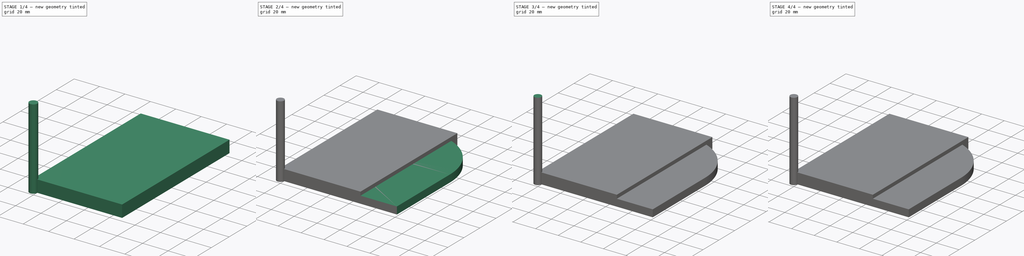
[diagram: build sequence overview — one tinted view per stage of 4, left to right]
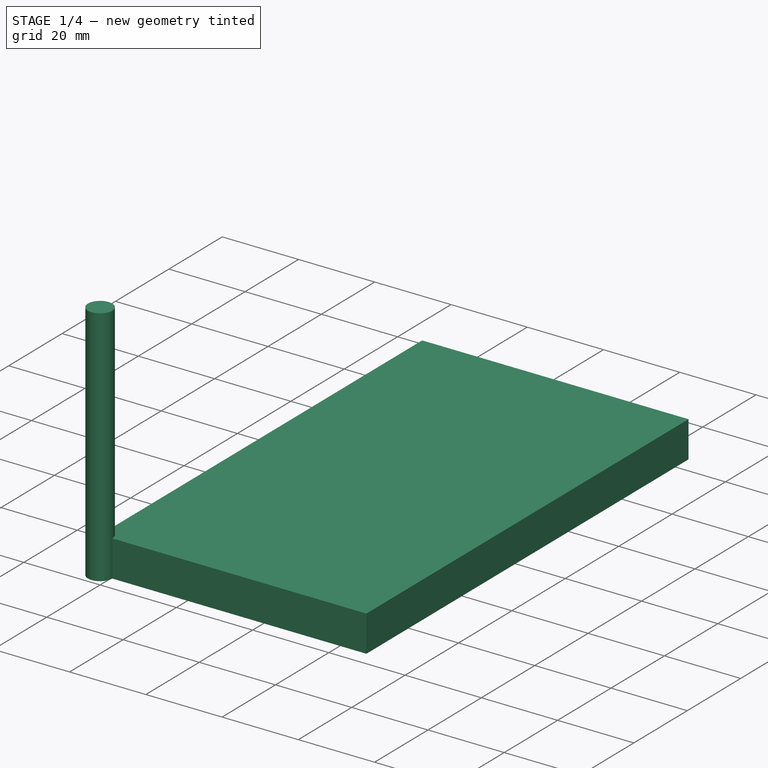
[diagram: stage 1 of 4 — iso view after this stage's code; geometry added in this stage tinted green]
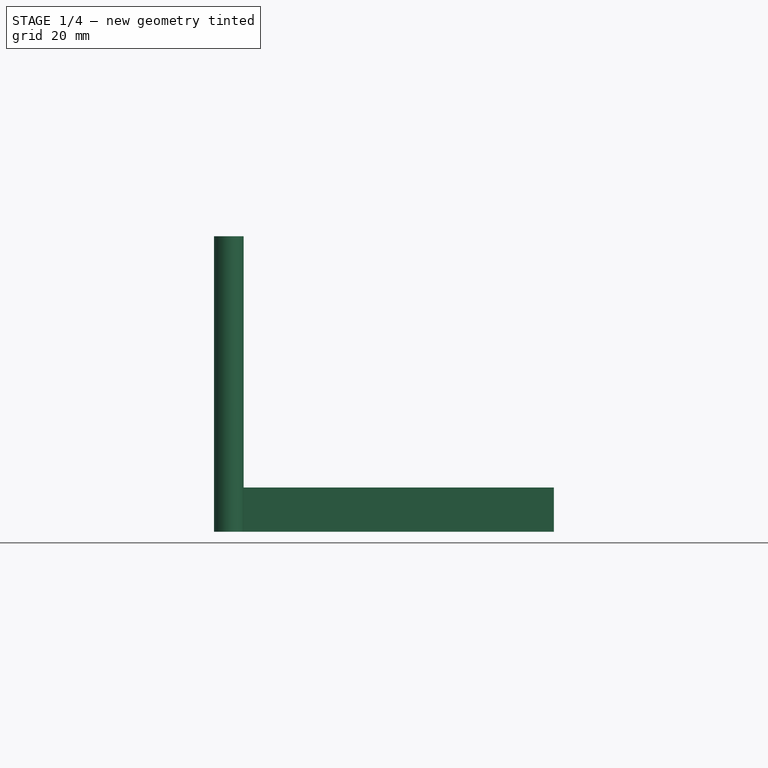
[diagram: stage 1 of 4 — front view after this stage's code; geometry added in this stage tinted green]
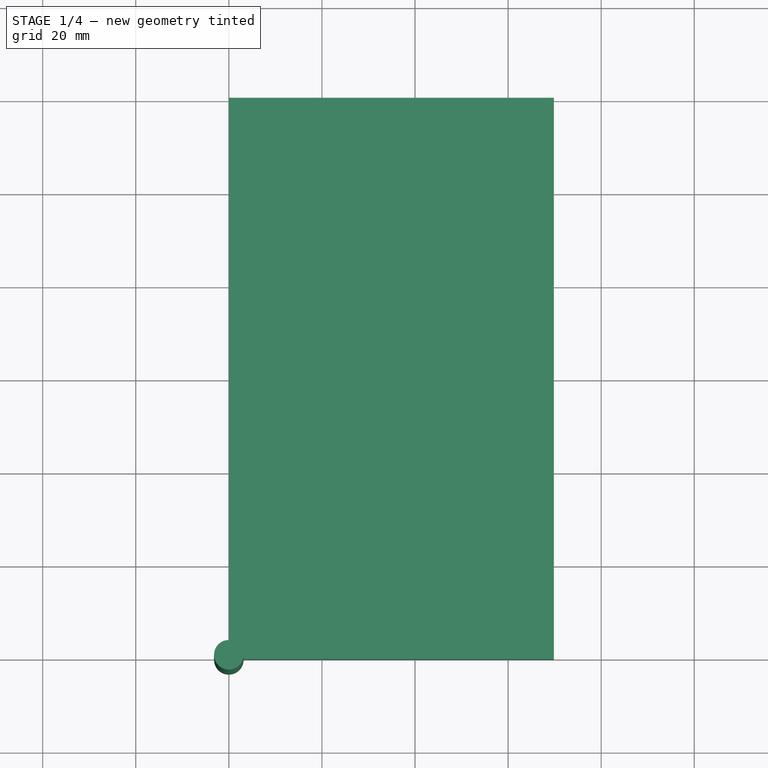
[diagram: stage 1 of 4 — top view after this stage's code; geometry added in this stage tinted green]
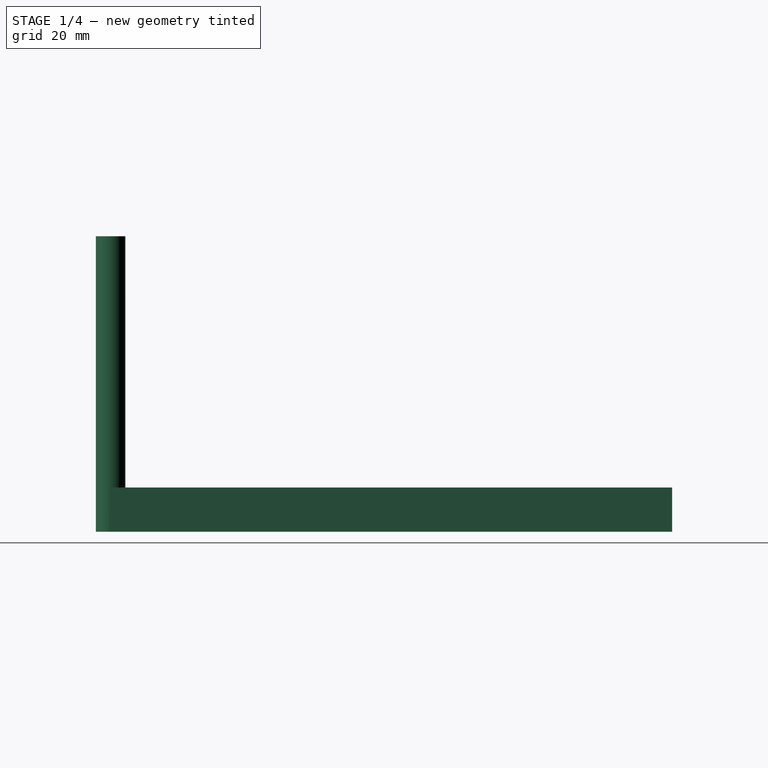
[diagram: stage 1 of 4 — right view after this stage's code; geometry added in this stage tinted green]
FCSTD DOCUMENT  (FreeCAD 1.1R42467 (Git))
Label: simple-part
License: All rights reserved
LicenseURL: http://en.wikipedia.org/wiki/All_rights_reserved
objects: Path::FeaturePython×7, Part::FeaturePython×5, Sketcher::SketchObject×4, App::FeaturePython×4, App::DocumentObjectGroup×3, PartDesign::Revolution×3, App::Point×3, PartDesign::Body×3, Part::Extrusion×1
note: 27 computed .brp shape members not serialized (recipe doc carries the construction recipe); baked Part::Feature solids carry a one-line shape summary decoded from their .brp

FEATURE [Path::FeaturePython] TC__1_4__Drill__Center  label="TC: 1/4" Drill- Center"  # Path/CAM operation (typed FeaturePython)
  HorizFeed = 0
  HorizRapid = 0
  SpindleDir = 0
  SpindleSpeed = 0
  Tool = -> __4__Drill__Center
  ToolNumber = 3
  VertFeed = 0
  VertRapid = 0
  expr: HorizRapid = SetupSheet.HorizRapid
  expr: VertRapid = SetupSheet.VertRapid
FEATURE [App::FeaturePython] PropertyBag003  label="Attributes023"  # WARN: FeaturePython — macro-defined, semantics opaque (R4)
  CustomPropertyGroups = 0
  CuttingEdgeHeight = 19.05
  Diameter = 6.35
  Flutes = 2
  Length = 63.5
  ShankDiameter = 6.35
FEATURE [Sketcher::SketchObject] Sketch004
  ArcFitTolerance = 0
  AttachmentSupport = -> [XZ_Plane003]
  ExternalTypes = [0]
  FullyConstrained = true
  MakeInternals = false
  MapMode = 5
  Placement = pos=(0,0,0) rot=(1,0,0;1.5708rad)
  expr: Constraints[10] = <<Attributes023>>.Length
  expr: Constraints[16] = <<Attributes023>>.ShankDiameter
  expr: Constraints[18] = <<Attributes023>>.CuttingEdgeHeight
  expr: Constraints[9] = <<Attributes023>>.Diameter
  sketch-geometry (8):
    g0: LineSegment StartX=0 StartY=63.5 StartZ=0 EndX=0 EndY=0 EndZ=0
    g1: LineSegment StartX=0 StartY=0 StartZ=0 EndX=3.175 EndY=0 EndZ=0
    g2: LineSegment StartX=3.175 StartY=0 StartZ=0 EndX=3.175 EndY=19.05 EndZ=0
    g3: LineSegment StartX=3.175 StartY=63.5 StartZ=0 EndX=0 EndY=63.5 EndZ=0
    g4: LineSegment [constr] StartX=3.175 StartY=0 StartZ=0 EndX=-3.175 EndY=0 EndZ=0
    g5: LineSegment StartX=3.175 StartY=19.04 StartZ=0 EndX=3.175 EndY=19.05 EndZ=0
    g6: LineSegment StartX=3.175 StartY=63.5 StartZ=0 EndX=3.175 EndY=19.04 EndZ=0
    g7: LineSegment [constr] StartX=-3.175 StartY=63.5 StartZ=0 EndX=3.175 EndY=63.5 EndZ=0
  constraints (21):
    c: Vertical(g0)
    c: Coincident(g0,g1)
    c: Horizontal(g1)
    c: Coincident(g1,g2)
    c: Vertical(g2)
    c: Horizontal(g3)
    c: Coincident(g0,g3)
    c: Coincident(g4,g1)
    c: Symmetric(g1,g4,g0)
    c: DistanceX(g4,g4) = 6.35
    c: DistanceY(g2,g3) = 63.5
    c: Coincident(g2,g5)
    c: Vertical(g6)
    c: Coincident(g3,g6)
    c: Symmetric(g7,g7,g0)
    c: Coincident(g7,g3)
    c: DistanceX(g7,g7) = 6.35
    c: Coincident(g5,g6)
    c: DistanceY(g2) = 19.05
    c: Coincident(g0,g-1)
    c: DistanceY(g5,g2) = 0.01
FEATURE [PartDesign::Revolution] Revolution003
  AllowMultiFace = false
  Angle = 360
  Angle2 = 60
  Axis = (0,2e-16,1)
  Base = (0,0,0)
  Placement = pos=(0,0,0) rot=(1,0,0;1.5708rad)
  Profile = -> Sketch004
  ReferenceAxis = -> Sketch004 [V_Axis]
  Reversed = true
  Suppressed = false
  Type = 0
FEATURE [Path::FeaturePython] TC__1_4__Endmill__2fl_Carbide  label="TC: 1/4" Endmill- 2fl Carbide"  # Path/CAM operation (typed FeaturePython)
  HorizFeed = 0
  HorizRapid = 0
  SpindleDir = 0
  SpindleSpeed = 0
  Tool = -> __4__Endmill__2fl_Carbide
  ToolNumber = 1
  VertFeed = 0
  VertRapid = 0
  expr: HorizRapid = SetupSheet.HorizRapid
  expr: VertRapid = SetupSheet.VertRapid
FEATURE [App::DocumentObjectGroup] Tools
  Group = -> [TC__1_4__Endmill__4fl_Carbide,TC__1_4__Drill__Center,TC__1_4__Endmill__2fl_Carbide]
FEATURE [Path::FeaturePython] Drilling  # Path/CAM operation (typed FeaturePython)
  Active = true
  AddTipLength = false
  Base = -> [Clone]
  ClearanceHeight = 14.525
  CoolantMode = 0
  CycleTime = Tool Feedrate Error
  DwellEnabled = false
  DwellTime = 1
  ExtraOffset = 0
  FinalDepth = 0
  KeepToolDown = false
  OpFinalDepth = 0
  OpStartDepth = 9.525
  OpStockZMax = 9.525
  OpStockZMin = 0
  OpToolDiameter = 6.35
  PeckDepth = 4.7625
  PeckEnabled = false
  RetractHeight = 12.525
  RetractMode = 0
  SafeHeight = 12.525
  StartDepth = 9.525
  ToolController = -> TC__1_4__Drill__Center
  chipBreakEnabled = false
  feedRetractEnabled = false
  expr: ClearanceHeight = OpStockZMax + SetupSheet.ClearanceHeightOffset
  expr: FinalDepth = OpFinalDepth
  expr: PeckDepth = OpToolDiameter * 0.75
  expr: RetractHeight = StartDepth + SetupSheet.SafeHeightOffset
  expr: SafeHeight = OpStockZMax + SetupSheet.SafeHeightOffset
  expr: StartDepth = OpStartDepth
FEATURE [Path::FeaturePython] Helix  # Path/CAM operation (typed FeaturePython)
  Active = true
  Base = -> [Clone]
  ClearanceHeight = 14.525
  CoolantMode = 0
  CutMode = 0
  CycleTime = Tool Feedrate Error
  Direction = 0
  Disabled = Clone.Face6
  FinalDepth = 0
  OffsetExtra = 0
  OpFinalDepth = 0
  OpStartDepth = 9.525
  OpStockZMax = 9.525
  OpStockZMin = 0
  OpToolDiameter = 6.35
  SafeHeight = 12.525
  StartDepth = 9.525
  StartRadius = 0
  StartSide = 0
  StepDown = 6.35
  StepOver = 50
  ToolController = -> TC__1_4__Endmill__2fl_Carbide
  expr: ClearanceHeight = OpStockZMax + SetupSheet.ClearanceHeightOffset
  expr: FinalDepth = OpFinalDepth
  expr: SafeHeight = OpStockZMax + SetupSheet.SafeHeightOffset
  expr: StartDepth = OpStartDepth
  expr: StepDown = OpToolDiameter
FEATURE [Path::FeaturePython] Profile  # Path/CAM operation (typed FeaturePython)
  Active = true
  AreaParams:
    Tolerance = 1e-07
    FitArcs = True
    Simplify = False
    CleanDistance = 0.0
    Accuracy = 0.01
    Unit = 1.0
    MinArcPoints = 4
    MaxArcPoints = 100
    ClipperScale = 10000000.0
    Fill = 0
    Coplanar = 0
    Reorient = True
    Outline = False
    Explode = False
    OpenMode = 0
    Deflection = 0.01
    SubjectFill = 0
    ClipFill = 0
    Offset = 0.0
    ExtraPass = 0
    Stepover = -0.0
    LastStepover = 0.0
    JoinType = 0
    EndType = 0
    MiterLimit = 2.0
    RoundPrecision = 0.0
    PocketMode = 0
    ToolRadius = 1.0
    PocketExtraOffset = 0.0
    PocketStepover = 0.0
    PocketLastStepover = 0.0
    FromCenter = False
    Angle = 45.0
    AngleShift = 0.0
    Shift = 0.0
    Thicken = False
    SectionCount = -1
    Stepdown = 1.0
    SectionOffset = 0.0
    SectionTolerance = 1e-06
    SectionMode = 2
    Project = False
  ClearanceHeight = 14.525
  CoolantMode = 0
  CycleTime = Tool Feedrate Error
  Direction = 0
  FinalDepth = 0
  HandleMultipleFeatures = 0
  JoinType = 0
  MiterLimit = 0.1
  NumPasses = 1
  OffsetExtra = 0
  OpFinalDepth = 0
  OpStartDepth = 9.525
  OpStockZMax = 9.525
  OpStockZMin = 0
  OpToolDiameter = 6.35
  PathParams = {'orientation': 0, 'feedrate': 0.0, 'feedrate_v': 0.0, 'verbose': True, 'resume_height': 12.524999999999999, 'retraction': 14.524999999999999, 'return_end': True, 'preamble': False, 'start': Vector (0.0, 0.0, 0.0)}
  SafeHeight = 12.525
  Side = 0
  SplitArcs = false
  StartDepth = 9.525
  StartPoint = (0,0,0)
  StepDown = 6.35
  Stepover = 0
  ToolController = -> TC__1_4__Endmill__2fl_Carbide
  UseComp = false
  UseStartPoint = true
  processCircles = false
  processHoles = false
  processPerimeter = true
  expr: ClearanceHeight = OpStockZMax + SetupSheet.ClearanceHeightOffset
  expr: FinalDepth = OpFinalDepth
  expr: SafeHeight = OpStockZMax + SetupSheet.SafeHeightOffset
  expr: StartDepth = OpStartDepth
  expr: StepDown = OpToolDiameter
FEATURE [App::DocumentObjectGroup] Operations
  Group = -> [Drilling,Helix,Profile]
FEATURE [Part::FeaturePython] Stock001  # WARN: FeaturePython — macro-defined, semantics opaque (R4)
  Height = 9.525
  Length = 69.85
  StockType = CreateBox
  Width = 120.65
FEATURE [Path::FeaturePython] Job  # Path/CAM operation (typed FeaturePython)
  CycleTime = 00:00:00
  Fixtures = G54
  GeometryTolerance = 0.00635
  JobType = 0
  Model = -> Model
  Operations = -> Operations
  OrderOutputBy = 0
  PostProcessor = 15
  PostProcessorArgs = --inches --line-numbers
  PostProcessorOutputFile = <userpath>/Projects/CAM/Test Files/Basic Part-LinuxCNC.cn
  SetupSheet = -> SetupSheet
  SplitOutput = false
  Stock = -> Stock001
  Tools = -> Tools
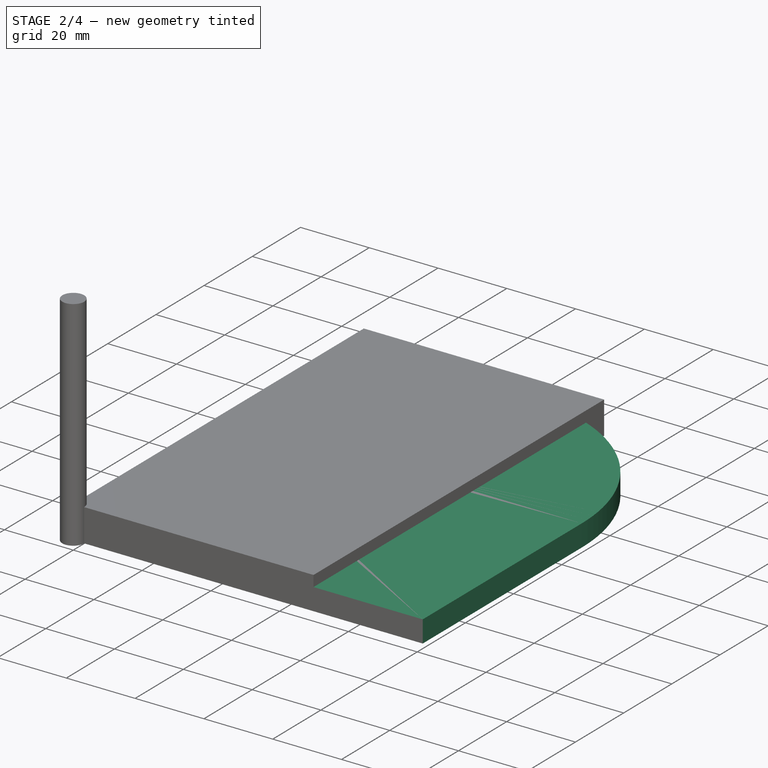
[diagram: stage 2 of 4 — iso view after this stage's code; geometry added in this stage tinted green]
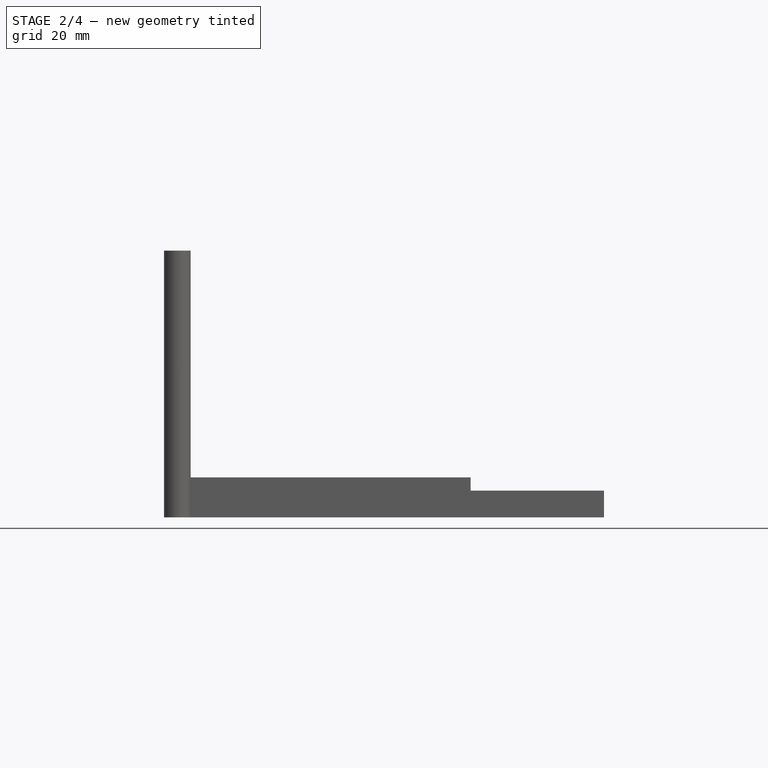
[diagram: stage 2 of 4 — front view after this stage's code; geometry added in this stage tinted green]
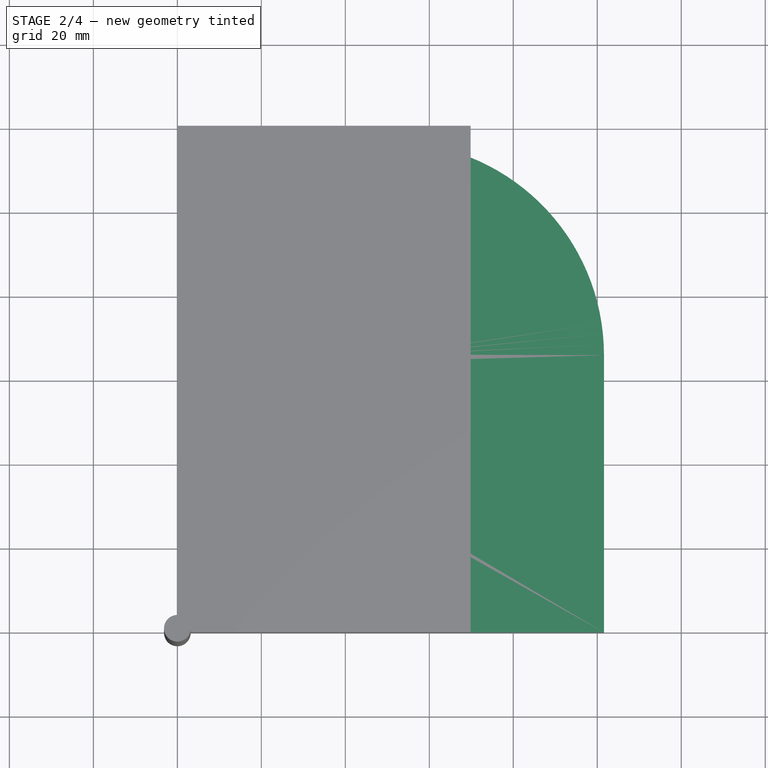
[diagram: stage 2 of 4 — top view after this stage's code; geometry added in this stage tinted green]
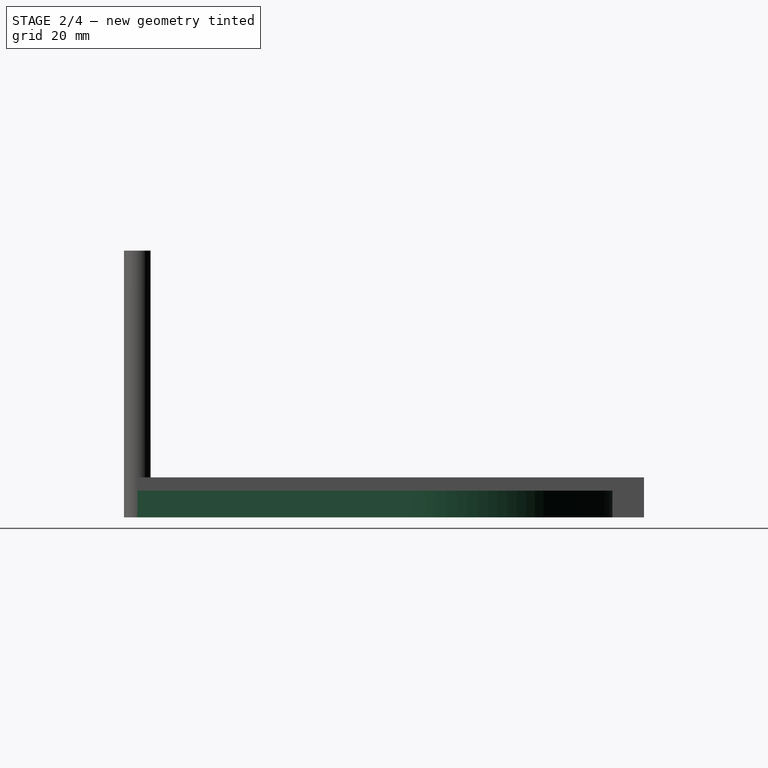
[diagram: stage 2 of 4 — right view after this stage's code; geometry added in this stage tinted green]
FEATURE [Sketcher::SketchObject] Sketch
  ArcFitTolerance = 1e-06
  ExternalTypes = [0]
  FullyConstrained = true
  MakeInternals = false
  sketch-geometry (15):
    g0: LineSegment StartX=0 StartY=0 StartZ=0 EndX=0 EndY=66.04 EndZ=0
    g1: LineSegment StartX=0 StartY=0 StartZ=0 EndX=101.6 EndY=0 EndZ=0
    g2: LineSegment StartX=101.6 StartY=0 StartZ=0 EndX=101.6 EndY=66.0401 EndZ=0
    g3: LineSegment [constr] StartX=0 StartY=66.04 StartZ=0 EndX=50.8 EndY=66.04 EndZ=0
    g4: ArcOfCircle CenterX=50.8 CenterY=66.04 CenterZ=0 NormalX=0 NormalY=0 NormalZ=1 AngleXU=0 Radius=50.8 StartAngle=1.21613e-06 EndAngle=3.14159
    g5: Circle CenterX=50.8 CenterY=66.04 CenterZ=0 NormalX=0 NormalY=0 NormalZ=1 AngleXU=0 Radius=3.175
    g6: GeomPoint X=0 Y=33.02 Z=0
    g7: GeomPoint [constr] X=0 Y=33.02 Z=0
    g8: GeomPoint [constr] X=50.8 Y=33.02 Z=0
    g9: Circle CenterX=50.8 CenterY=33.02 CenterZ=0 NormalX=0 NormalY=0 NormalZ=1 AngleXU=0 Radius=6.35
    g10: GeomPoint X=50.8 Y=116.84 Z=0
    g11: GeomPoint X=50.8 Y=0 Z=0
    g12: GeomPoint [constr] X=50.8 Y=0 Z=0
    g13: LineSegment [constr] StartX=50.8 StartY=0 StartZ=0 EndX=50.8 EndY=116.84 EndZ=0
    g14: LineSegment [constr] StartX=0 StartY=33.02 StartZ=0 EndX=50.8 EndY=33.02 EndZ=0
  constraints (30):
    c: Coincident(g0,g-1)
    c: Vertical(g0)
    c: Distance(g1) = 101.6
    c: Coincident(g1,g0)
    c: PointOnObject(g1,g-1)
    c: Coincident(g2,g1)
    c: Vertical(g2)
    c: Coincident(g3,g0)
    c: Coincident(g4,g3)
    c: Coincident(g4,g2)
    c: Coincident(g0,g4)
    c: Horizontal(g3)
    c: Diameter(g5) = 6.35
    c: Coincident(g5,g3)
    c: Symmetric(g0,g0,g6)
    c: Coincident(g7,g6)
    c: Diameter(g9) = 12.7
    c: Coincident(g9,g8)
    c: PointOnObject(g10,g4)
    c: Symmetric(g1,g1,g11)
    c: Coincident(g12,g11)
    c: Coincident(g13,g11)
    c: Coincident(g13,g10)
    c: Vertical(g13)
    c: Coincident(g14,g6)
    c: Coincident(g14,g8)
    c: Horizontal(g14)
    c: DistanceY(g-1,g10) = 116.84
    c: PointOnObject(g3,g13)
    c: PointOnObject(g8,g13)
FEATURE [Part::Extrusion] Extrude  label="Part"
  Base = -> Sketch
  Dir = (0,0,1)
  DirMode = 2
  FaceMakerClass = Part::FaceMakerBullseye
  FaceMakerMode = 3
  LengthFwd = 6.35
  LengthRev = 0
  Solid = true
  Symmetric = false
FEATURE [App::Point] Origin006
  Role = Origin
FEATURE [PartDesign::Body] Body003  label="Endmill002"
  AllowCompound = false
  Group = -> [Sketch004,Revolution003,PropertyBag003]
  Origin = -> Origin007
  Tip = -> Revolution003
FEATURE [Part::FeaturePython] __4__Endmill__2fl_Carbide  label="1/4" Endmill- 2fl Carbide"  # WARN: FeaturePython — macro-defined, semantics opaque (R4)
  BitBody = -> Body003
  Chipload = 0
  CuttingEdgeHeight = 19.05
  Diameter = 6.35
  Flutes = 2
  Length = 63.5
  Material = 1
  ShankDiameter = 6.35
  ShapeID = endmill
  ShapeType = 6
  SpindleDirection = 0
  ToolBitID = d47718d2-7371-4f2e-8ebc-a0c517a66bfe
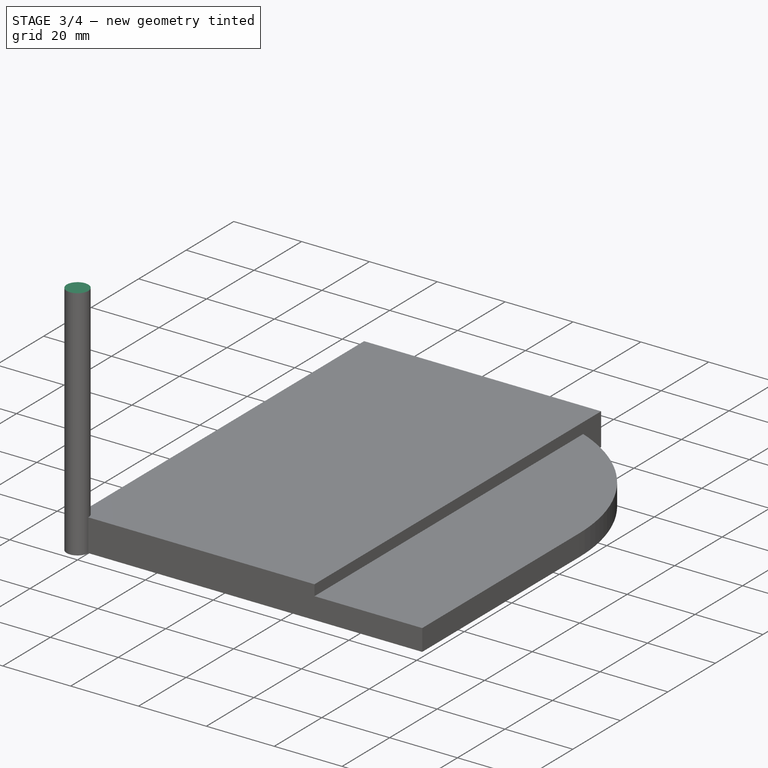
[diagram: stage 3 of 4 — iso view after this stage's code; geometry added in this stage tinted green]
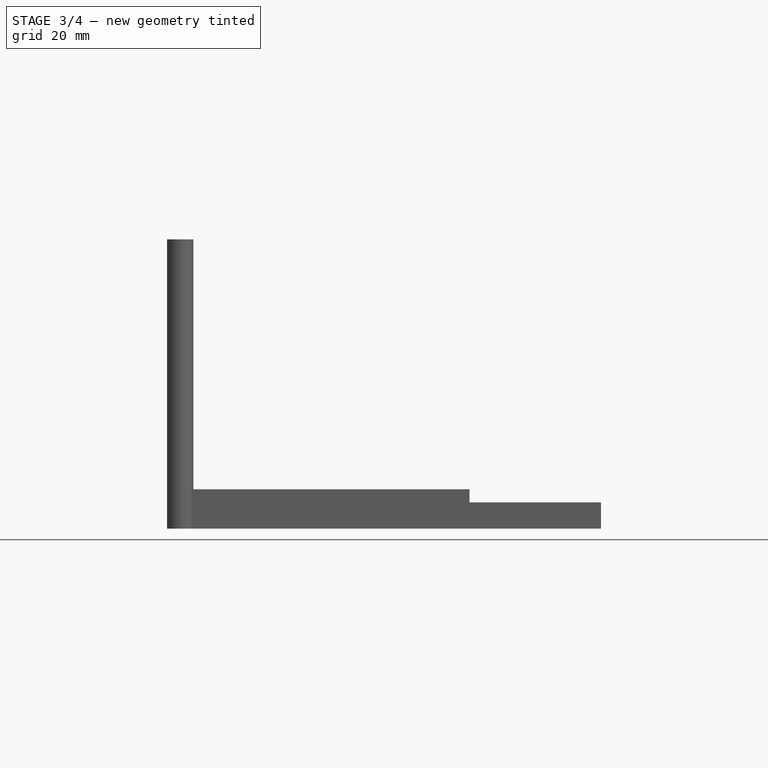
[diagram: stage 3 of 4 — front view after this stage's code; geometry added in this stage tinted green]
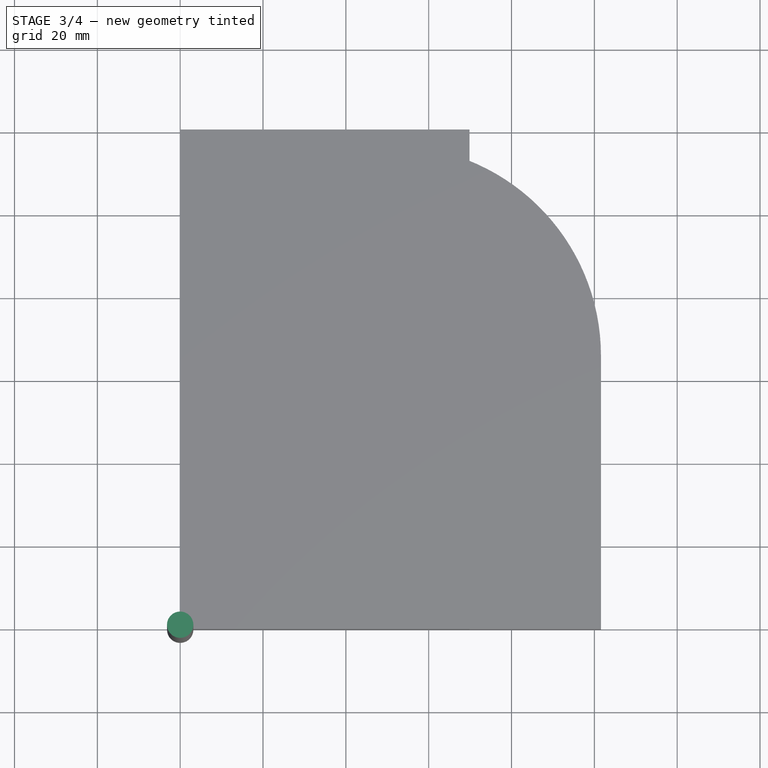
[diagram: stage 3 of 4 — top view after this stage's code; geometry added in this stage tinted green]
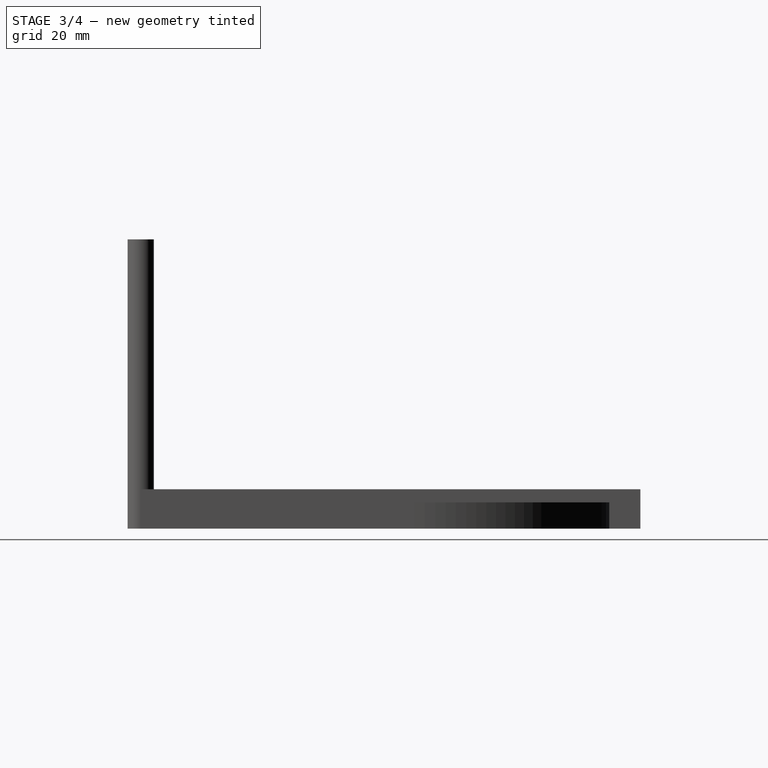
[diagram: stage 3 of 4 — right view after this stage's code; geometry added in this stage tinted green]
FEATURE [App::FeaturePython] SetupSheet  # Path/CAM operation (typed FeaturePython)
  ClearanceHeightExpression = OpStockZMax+SetupSheet.ClearanceHeightOffset
  ClearanceHeightOffset = 5
  CoolantMode = 0
  CoolantModes = None | Flood | Mist
  FinalDepthExpression = OpFinalDepth
  HorizRapid = 0
  SafeHeightExpression = OpStockZMax+SetupSheet.SafeHeightOffset
  SafeHeightOffset = 3
  StartDepthExpression = OpStartDepth
  StepDownExpression = OpToolDiameter
  VertRapid = 0
FEATURE [Part::FeaturePython] Clone  label="Model-Part"  # Draft clone (typed FeaturePython)
  AttacherType = Attacher::AttachEngine3D
  ForceCompound = false
  Fuse = false
  Objects = -> [Extrude]
  PathResource = Model
  Scale = (1,1,1)
FEATURE [Path::FeaturePython] TC__1_4__Endmill__4fl_Carbide  label="TC: 1/4" Endmill- 4fl-Carbide"  # Path/CAM operation (typed FeaturePython)
  HorizFeed = 0
  HorizRapid = 0
  SpindleDir = 0
  SpindleSpeed = 0
  Tool = -> __4__Endmill__4fl_Carbide
  ToolNumber = 2
  VertFeed = 0
  VertRapid = 0
  expr: HorizRapid = SetupSheet.HorizRapid
  expr: VertRapid = SetupSheet.VertRapid
FEATURE [App::FeaturePython] PropertyBag002  label="Attributes017"  # WARN: FeaturePython — macro-defined, semantics opaque (R4)
  CustomPropertyGroups = 0
  Diameter = 6.35
  Flutes = 2
  Length = 69.85
  TipAngle = 90
FEATURE [Sketcher::SketchObject] Sketch003
  ArcFitTolerance = 0
  AttachmentSupport = -> [XZ_Plane002]
  ExternalTypes = [0]
  FullyConstrained = true
  MakeInternals = false
  MapMode = 5
  Placement = pos=(0,0,0) rot=(1,0,0;1.5708rad)
  expr: Constraints[13] = <<Attributes017>>.TipAngle
  expr: Constraints[14] = <<Attributes017>>.Diameter
  expr: Constraints[15] = <<Attributes017>>.Length
  sketch-geometry (7):
    g0: LineSegment StartX=0 StartY=69.85 StartZ=0 EndX=0 EndY=0 EndZ=0
    g1: LineSegment StartX=0 StartY=0 StartZ=0 EndX=3.175 EndY=3.175 EndZ=0
    g2: LineSegment StartX=3.175 StartY=3.175 StartZ=0 EndX=3.175 EndY=69.85 EndZ=0
    g3: LineSegment StartX=3.175 StartY=69.85 StartZ=0 EndX=0 EndY=69.85 EndZ=0
    g4: LineSegment [constr] StartX=3.175 StartY=3.175 StartZ=0 EndX=-3.175 EndY=3.175 EndZ=0
    g5: LineSegment [constr] StartX=-3.175 StartY=3.175 StartZ=0 EndX=0 EndY=0 EndZ=0
    g6: LineSegment [constr] StartX=0 StartY=0 StartZ=0 EndX=3.175 EndY=3.175 EndZ=0
  constraints (17):
    c: Vertical(g0)
    c: Coincident(g0,g1)
    c: Coincident(g1,g2)
    c: Vertical(g2)
    c: Coincident(g2,g3)
    c: Horizontal(g3)
    c: Coincident(g0,g3)
    c: Coincident(g4,g5)
    c: Coincident(g5,g6)
    c: Coincident(g6,g4)
    c: Coincident(g1,g4)
    c: Coincident(g5,g0)
    c: Symmetric(g4,g1,g0)
    c: Angle(g1,g5) = 1.5708
    c: DistanceX(g4,g4) = 6.35
    c: DistanceY(g0,g0) = 69.85
    c: Coincident(g0,g-1)
FEATURE [PartDesign::Revolution] Revolution002
  AllowMultiFace = false
  Angle = 360
  Angle2 = 60
  Axis = (0,2e-16,1)
  Base = (0,0,0)
  Placement = pos=(0,0,0) rot=(1,0,0;1.5708rad)
  Profile = -> Sketch003
  ReferenceAxis = -> Sketch003 [V_Axis]
  Reversed = true
  Suppressed = false
  Type = 0
FEATURE [App::Point] Origin004
  Role = Origin
FEATURE [PartDesign::Body] Body002  label="Drill"
  AllowCompound = false
  Group = -> [Sketch003,Revolution002,PropertyBag002]
  Origin = -> Origin005
  Tip = -> Revolution002
FEATURE [Part::FeaturePython] __4__Drill__Center  label="1/4" Drill- Center"  # WARN: FeaturePython — macro-defined, semantics opaque (R4)
  BitBody = -> Body002
  Chipload = 0
  Diameter = 6.35
  Flutes = 2
  Length = 69.85
  Material = 1
  ShapeID = drill
  ShapeType = 5
  SpindleDirection = 0
  TipAngle = 90
  ToolBitID = f3a3e764-0c18-4120-85be-344cbe2686b5
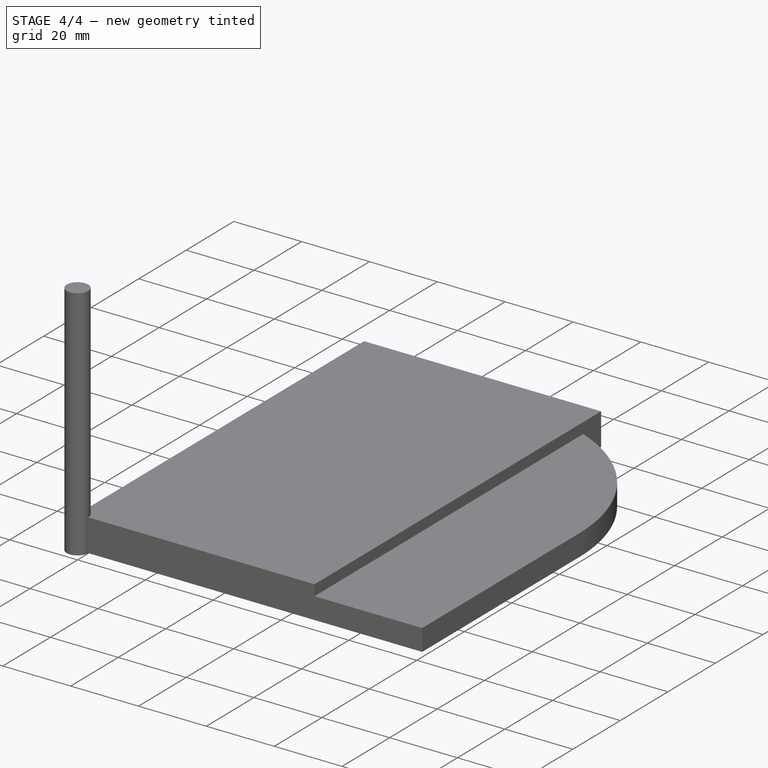
[diagram: stage 4 of 4 — iso view after this stage's code; geometry added in this stage tinted green]
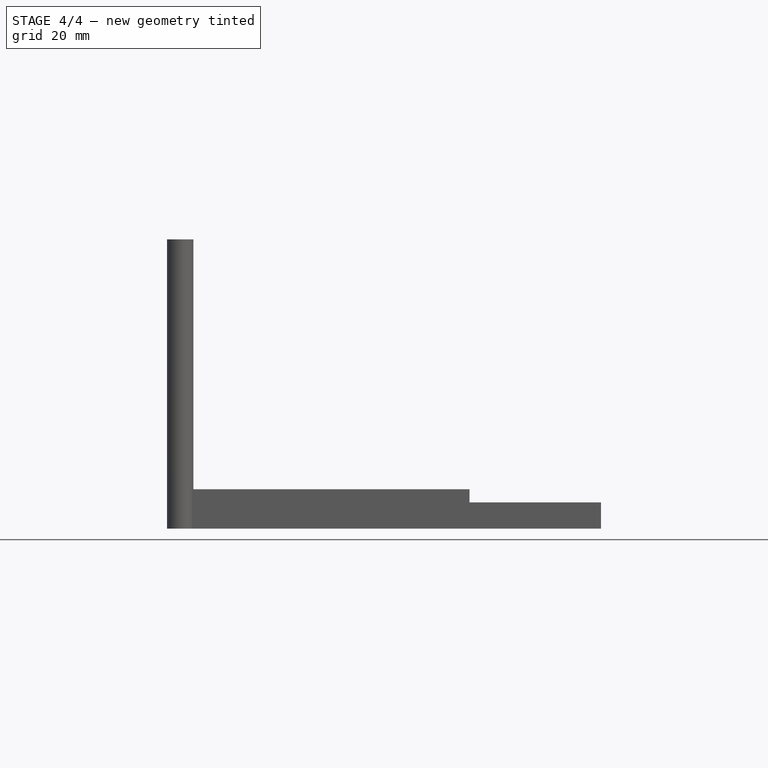
[diagram: stage 4 of 4 — front view after this stage's code; geometry added in this stage tinted green]
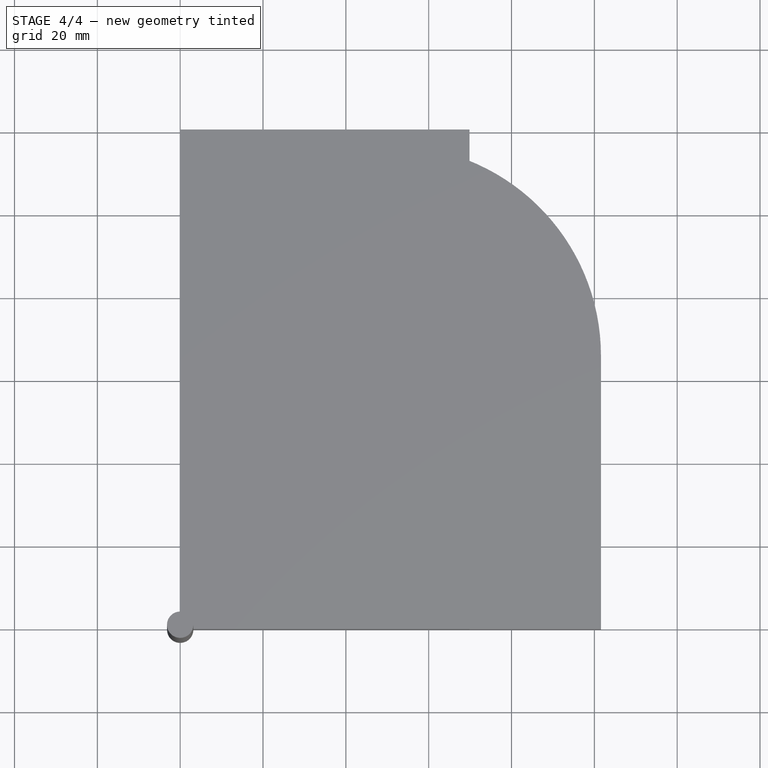
[diagram: stage 4 of 4 — top view after this stage's code; geometry added in this stage tinted green]
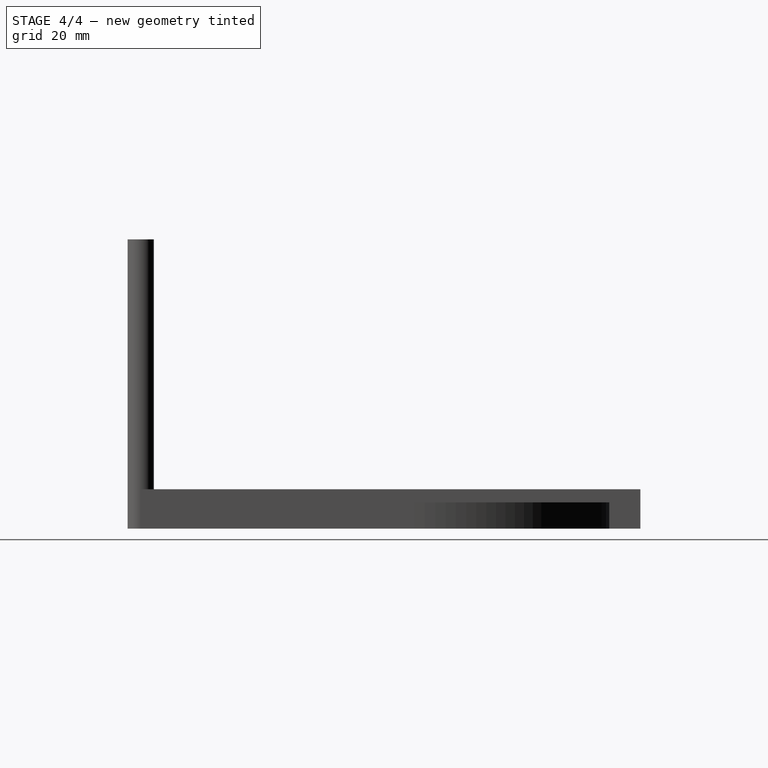
[diagram: stage 4 of 4 — right view after this stage's code; geometry added in this stage tinted green]
FEATURE [App::DocumentObjectGroup] Model
  Group = -> [Clone]
FEATURE [App::FeaturePython] PropertyBag001  label="Attributes012"  # WARN: FeaturePython — macro-defined, semantics opaque (R4)
  CustomPropertyGroups = 0
  CuttingEdgeHeight = 40.005
  Diameter = 6.35
  FlatRadius = 1.524
  Flutes = 4
  Length = 50.8
  ShankDiameter = 6.35
FEATURE [Sketcher::SketchObject] Sketch002
  ArcFitTolerance = 0
  AttachmentSupport = -> [XZ_Plane001]
  ExternalTypes = [0]
  FullyConstrained = true
  MakeInternals = false
  MapMode = 5
  Placement = pos=(0,0,0) rot=(1,0,0;1.5708rad)
  expr: Constraints[12] = <<Attributes012>>.ShankDiameter
  expr: Constraints[19] = <<Attributes012>>.FlatRadius
  expr: Constraints[20] = <<Attributes012>>.CuttingEdgeHeight
  expr: Constraints[5] = <<Attributes012>>.Diameter
  expr: Constraints[6] = <<Attributes012>>.Length
  sketch-geometry (9):
    g0: LineSegment StartX=0 StartY=50.8 StartZ=0 EndX=0 EndY=0 EndZ=0
    g1: LineSegment StartX=0 StartY=0 StartZ=0 EndX=1.524 EndY=0 EndZ=0
    g2: LineSegment StartX=3.175 StartY=1.651 StartZ=0 EndX=3.175 EndY=40.005 EndZ=0
    g3: LineSegment StartX=3.175 StartY=50.8 StartZ=0 EndX=0 EndY=50.8 EndZ=0
    g4: LineSegment [constr] StartX=3.175 StartY=0 StartZ=0 EndX=-3.175 EndY=0 EndZ=0
    g5: LineSegment StartX=3.175 StartY=40.015 StartZ=0 EndX=3.175 EndY=40.005 EndZ=0
    g6: LineSegment StartX=3.175 StartY=50.8 StartZ=0 EndX=3.175 EndY=40.015 EndZ=0
    g7: LineSegment [constr] StartX=-3.175 StartY=50.8 StartZ=0 EndX=3.175 EndY=50.8 EndZ=0
    g8: ArcOfCircle CenterX=1.524 CenterY=1.651 CenterZ=0 NormalX=0 NormalY=0 NormalZ=1 AngleXU=0 Radius=1.651 StartAngle=4.71239 EndAngle=6.28319
  constraints (24):
    c: Vertical(g0)
    c: Coincident(g0,g1)
    c: Horizontal(g1)
    c: Vertical(g2)
    c: Horizontal(g3)
    c: DistanceX(g4,g4) = 6.35
    c: DistanceY(g4,g3) = 50.8
    c: Coincident(g2,g5)
    c: Vertical(g6)
    c: Coincident(g3,g6)
    c: Symmetric(g7,g7,g0)
    c: Coincident(g7,g3)
    c: DistanceX(g7,g7) = 6.35
    c: Coincident(g5,g6)
    c: Tangent(g1,g8) = -1.5708
    c: Tangent(g2,g8) = -1.5708
    c: PointOnObject(g0,g4)
    c: Symmetric(g4,g4,g-2)
    c: Vertical(g4,g2)
    c: DistanceX(g1,g1) = 1.524
    c: DistanceY(g1,g2) = 40.005
    c: Coincident(g0,g3)
    c: Coincident(g-1,g0)
    c: DistanceY(g2,g5) = 0.01
FEATURE [PartDesign::Revolution] Revolution001
  AllowMultiFace = false
  Angle = 360
  Angle2 = 60
  Axis = (0,2e-16,1)
  Base = (0,0,0)
  Placement = pos=(0,0,0) rot=(1,0,0;1.5708rad)
  Profile = -> Sketch002
  ReferenceAxis = -> Sketch002 [V_Axis]
  Reversed = true
  Suppressed = false
  Type = 0
FEATURE [App::Point] Origin002
  Role = Origin
FEATURE [PartDesign::Body] Body001  label="Bullnose"
  AllowCompound = false
  Group = -> [Sketch002,Revolution001,PropertyBag001]
  Origin = -> Origin003
  Tip = -> Revolution001
FEATURE [Part::FeaturePython] __4__Endmill__4fl_Carbide  label="1/4" Endmill- 4fl-Carbide"  # WARN: FeaturePython — macro-defined, semantics opaque (R4)
  BitBody = -> Body001
  Chipload = 0
  CuttingEdgeHeight = 40.005
  Diameter = 6.35
  FlatRadius = 1.524
  Flutes = 4
  Length = 50.8
  Material = 1
  ShankDiameter = 6.35
  ShapeID = bullnose
  ShapeType = 1
  SpindleDirection = 0
  ToolBitID = 35986e3c-0b7b-4ec9-b2be-7a657d57a4f8
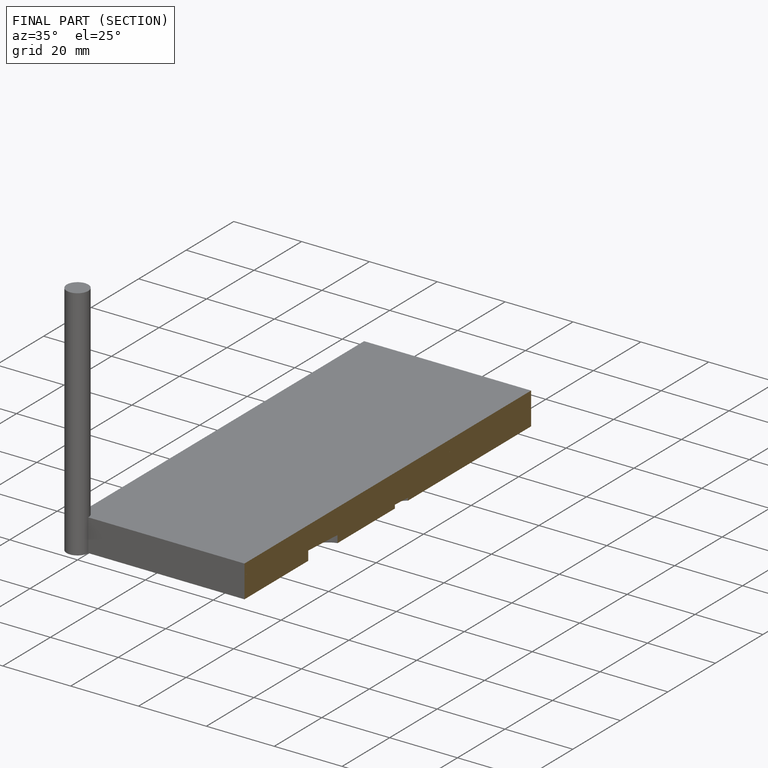
[diagram: finished part — half-section view (interior)]
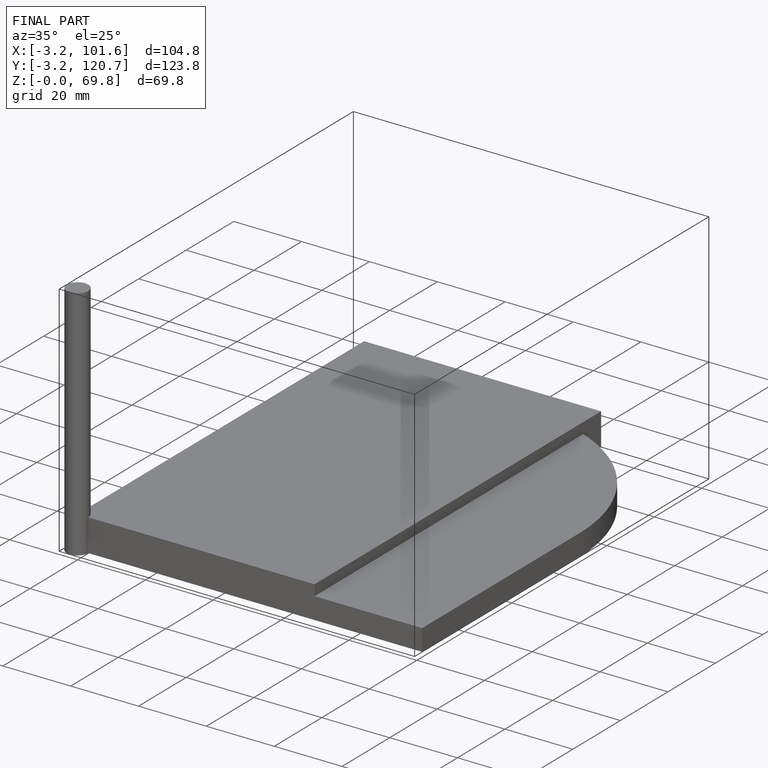
[diagram: finished part — iso view with bounding-box wireframe]
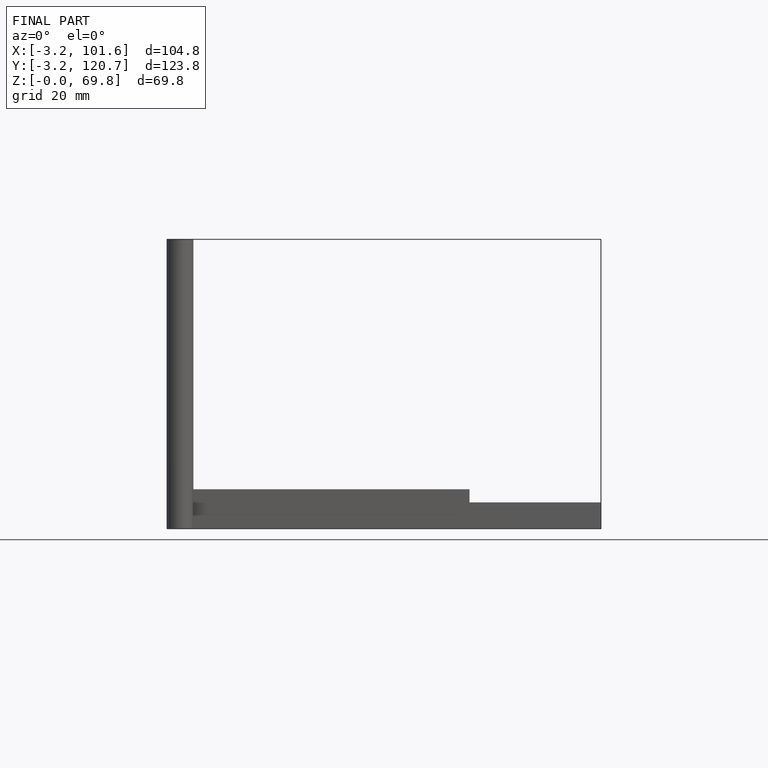
[diagram: finished part — front view with bounding-box wireframe]
